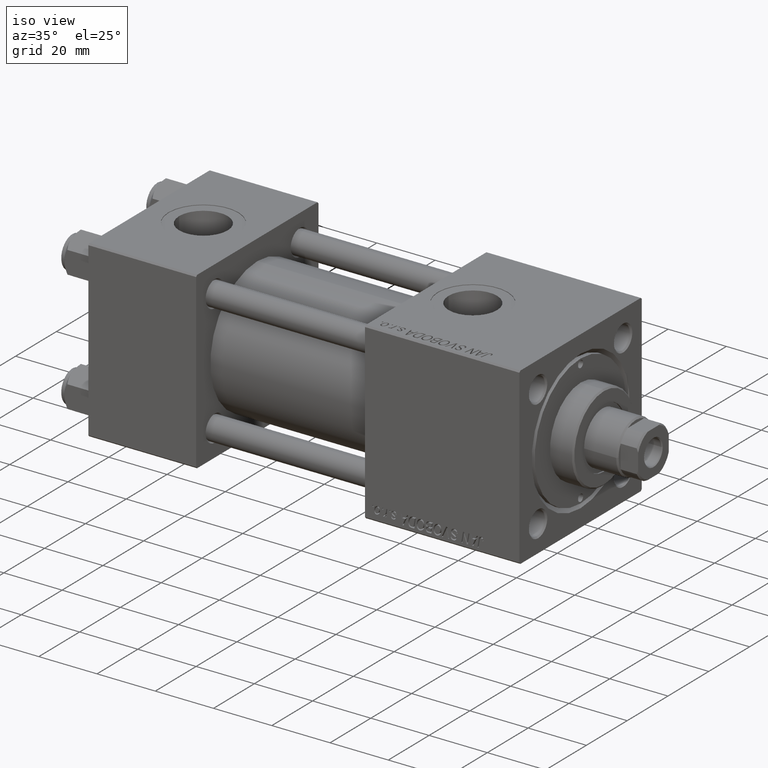
[diagram: clean part render]
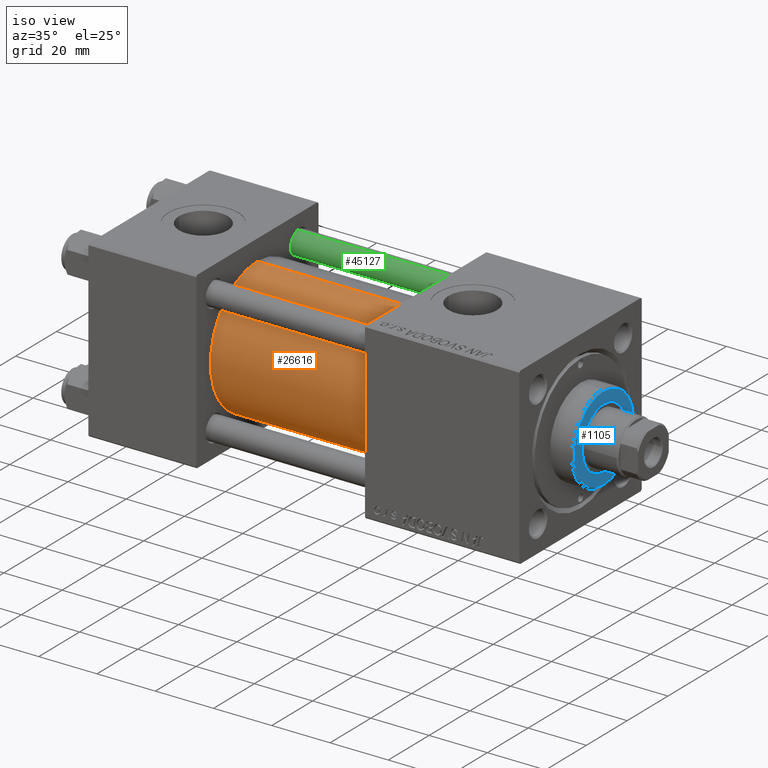
[diagram: same view with three faces highlighted in distinct colors, each labeled with its STEP entity id]
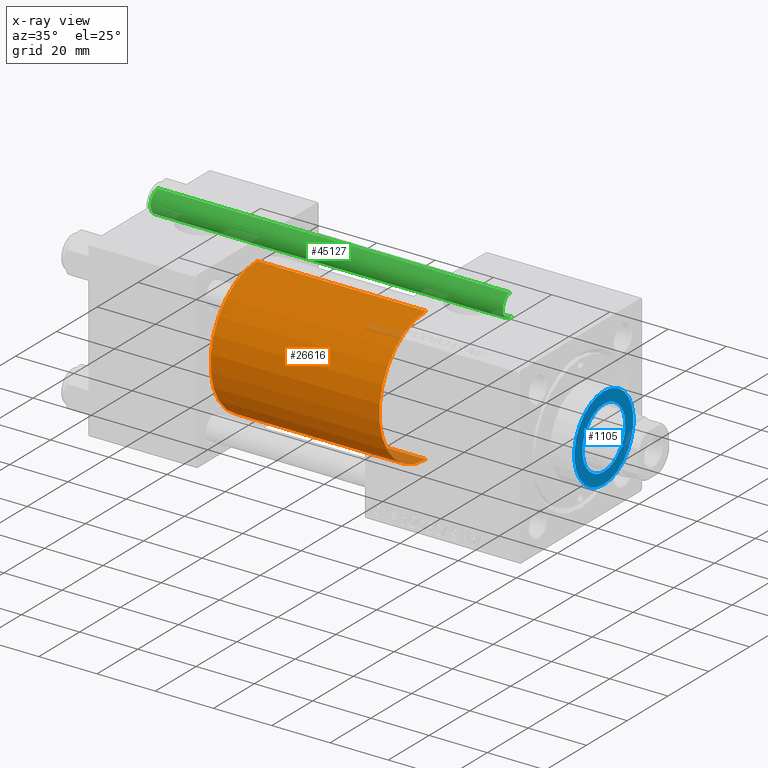
[diagram: x-ray of the same camera — body ghosted, the three highlighted faces saturated]
A machine part, iso view with three faces highlighted in distinct colors.
The next image is the same camera in x-ray (body ghosted, the three faces saturated) — at least one of them is partly hidden behind the body in this view.
Their STEP definitions:

[orange] entity #26616 — the highlighted cylindrical surface (partial cylindrical patch) has radius 23 mm, axis along (-1, -0, -0).
#1779 = CARTESIAN_POINT ( 'NONE',  ( 95.00000000000000000, -2.602085213965210642E-15, 0.000000000000000000 ) ) ;
#3115 = ORIENTED_EDGE ( 'NONE', *, *, #33470, .F. ) ;
#4968 = CARTESIAN_POINT ( 'NONE',  ( 95.00000000000000000, -2.602085213965210642E-15, 23.00000000000000000 ) ) ;
#5755 = AXIS2_PLACEMENT_3D ( 'NONE', #14068, #49344, #33694 ) ;
#6786 = CARTESIAN_POINT ( 'NONE',  ( 37.00000000000000000, -2.602085213965210642E-15, 0.000000000000000000 ) ) ;
#7624 = CIRCLE ( 'NONE', #35580, 23.00000000000000000 ) ;
#8153 = LINE ( 'NONE', #4968, #45546 ) ;
#8680 = EDGE_CURVE ( 'NONE', #51917, #17985, #22684, .T. ) ;
#9056 = ORIENTED_EDGE ( 'NONE', *, *, #8680, .T. ) ;
#9215 = DIRECTION ( 'NONE',  ( 0.000000000000000000, 0.000000000000000000, -1.000000000000000000 ) ) ;
#9316 = CYLINDRICAL_SURFACE ( 'NONE', #5755, 23.00000000000000000 ) ;
#10214 = DIRECTION ( 'NONE',  ( -1.000000000000000000, -0.000000000000000000, -0.000000000000000000 ) ) ;
#10246 = DIRECTION ( 'NONE',  ( 0.000000000000000000, 0.000000000000000000, 1.000000000000000000 ) ) ;
#14068 = CARTESIAN_POINT ( 'NONE',  ( 95.00000000000000000, -2.602085213965210642E-15, 0.000000000000000000 ) ) ;
#14193 = CARTESIAN_POINT ( 'NONE',  ( 95.00000000000000000, 2.146024240737012665E-16, -23.00000000000000000 ) ) ;
#17566 = EDGE_LOOP ( 'NONE', ( #3115, #30720, #32111, #9056 ) ) ;
#17985 = VERTEX_POINT ( 'NONE', #42307 ) ;
#22684 = CIRCLE ( 'NONE', #52304, 23.00000000000000000 ) ;
#25106 = DIRECTION ( 'NONE',  ( -1.000000000000000000, -0.000000000000000000, -0.000000000000000000 ) ) ;
#26616 = ADVANCED_FACE ( 'NONE', ( #46130 ), #9316, .T. ) ;
#27119 = VECTOR ( 'NONE', #10214, 1000.000000000000000 ) ;
#27391 = EDGE_CURVE ( 'NONE', #27420, #51917, #8153, .T. ) ;
#27420 = VERTEX_POINT ( 'NONE', #52419 ) ;
#30720 = ORIENTED_EDGE ( 'NONE', *, *, #37165, .F. ) ;
#32111 = ORIENTED_EDGE ( 'NONE', *, *, #27391, .T. ) ;
#32179 = CARTESIAN_POINT ( 'NONE',  ( 37.00000000000000000, -2.602085213965210642E-15, 23.00000000000000000 ) ) ;
#33470 = EDGE_CURVE ( 'NONE', #46253, #17985, #50512, .T. ) ;
#33694 = DIRECTION ( 'NONE',  ( 0.000000000000000000, 0.000000000000000000, 1.000000000000000000 ) ) ;
#35153 = DIRECTION ( 'NONE',  ( 1.000000000000000000, -0.000000000000000000, 0.000000000000000000 ) ) ;
#35580 = AXIS2_PLACEMENT_3D ( 'NONE', #1779, #50027, #9215 ) ;
#37165 = EDGE_CURVE ( 'NONE', #27420, #46253, #7624, .T. ) ;
#42307 = CARTESIAN_POINT ( 'NONE',  ( 37.00000000000000000, 2.146024240737012665E-16, -23.00000000000000000 ) ) ;
#45546 = VECTOR ( 'NONE', #25106, 1000.000000000000000 ) ;
#46130 = FACE_OUTER_BOUND ( 'NONE', #17566, .T. ) ;
#46253 = VERTEX_POINT ( 'NONE', #47186 ) ;
#47186 = CARTESIAN_POINT ( 'NONE',  ( 95.00000000000000000, 2.146024240737012665E-16, -23.00000000000000000 ) ) ;
#49344 = DIRECTION ( 'NONE',  ( -1.000000000000000000, -0.000000000000000000, -0.000000000000000000 ) ) ;
#50027 = DIRECTION ( 'NONE',  ( 1.000000000000000000, 0.000000000000000000, 0.000000000000000000 ) ) ;
#50512 = LINE ( 'NONE', #14193, #27119 ) ;
#51917 = VERTEX_POINT ( 'NONE', #32179 ) ;
#52304 = AXIS2_PLACEMENT_3D ( 'NONE', #6786, #35153, #10246 ) ;
#52419 = CARTESIAN_POINT ( 'NONE',  ( 95.00000000000000000, -2.602085213965210642E-15, 23.00000000000000000 ) ) ;

[blue] entity #1105 — the highlighted planar face has unit normal (1, 0, 0).
#1105 = ADVANCED_FACE ( 'NONE', ( #11718, #52272 ), #23126, .T. ) ;
#1557 = AXIS2_PLACEMENT_3D ( 'NONE', #49368, #9342, #45375 ) ;
#2580 = CIRCLE ( 'NONE', #17850, 10.50000000000000000 ) ;
#3221 = CIRCLE ( 'NONE', #1557, 14.50000000000001776 ) ;
#5995 = VERTEX_POINT ( 'NONE', #18191 ) ;
#7280 = EDGE_CURVE ( 'NONE', #17539, #43212, #24333, .T. ) ;
#7590 = VERTEX_POINT ( 'NONE', #29015 ) ;
#9069 = CARTESIAN_POINT ( 'NONE',  ( 0.000000000000000000, 0.000000000000000000, 36.69999999999999574 ) ) ;
#9342 = DIRECTION ( 'NONE',  ( 0.000000000000000000, 0.000000000000000000, 1.000000000000000000 ) ) ;
#9768 = DIRECTION ( 'NONE',  ( 1.000000000000000000, 0.000000000000000000, 0.000000000000000000 ) ) ;
#11718 = FACE_BOUND ( 'NONE', #37801, .T. ) ;
#11729 = CARTESIAN_POINT ( 'NONE',  ( 14.50000000000001776, 1.806354028742346985E-15, 36.69999999999999574 ) ) ;
#11980 = DIRECTION ( 'NONE',  ( 1.000000000000000000, 0.000000000000000000, -0.000000000000000000 ) ) ;
#12140 = DIRECTION ( 'NONE',  ( 1.000000000000000000, 0.000000000000000000, 0.000000000000000000 ) ) ;
#13225 = ORIENTED_EDGE ( 'NONE', *, *, #28236, .T. ) ;
#14778 = DIRECTION ( 'NONE',  ( 0.000000000000000000, 0.000000000000000000, 1.000000000000000000 ) ) ;
#16956 = EDGE_CURVE ( 'NONE', #5995, #7590, #28090, .T. ) ;
#17539 = VERTEX_POINT ( 'NONE', #34217 ) ;
#17806 = DIRECTION ( 'NONE',  ( 0.000000000000000000, 0.000000000000000000, 1.000000000000000000 ) ) ;
#17850 = AXIS2_PLACEMENT_3D ( 'NONE', #40751, #48711, #12140 ) ;
#18191 = CARTESIAN_POINT ( 'NONE',  ( -10.50000000000000000, 1.285879139104720831E-15, 36.69999999999999574 ) ) ;
#21272 = DIRECTION ( 'NONE',  ( 1.000000000000000000, 0.000000000000000000, 0.000000000000000000 ) ) ;
#22221 = CARTESIAN_POINT ( 'NONE',  ( 0.000000000000000000, 0.000000000000000000, 36.69999999999999574 ) ) ;
#23126 = PLANE ( 'NONE',  #24231 ) ;
#24231 = AXIS2_PLACEMENT_3D ( 'NONE', #51753, #43783, #11980 ) ;
#24333 = CIRCLE ( 'NONE', #41296, 14.50000000000001776 ) ;
#25725 = ORIENTED_EDGE ( 'NONE', *, *, #7280, .T. ) ;
#28090 = CIRCLE ( 'NONE', #37398, 10.50000000000000000 ) ;
#28236 = EDGE_CURVE ( 'NONE', #43212, #17539, #3221, .T. ) ;
#29015 = CARTESIAN_POINT ( 'NONE',  ( 10.50000000000000000, 0.000000000000000000, 36.69999999999999574 ) ) ;
#34217 = CARTESIAN_POINT ( 'NONE',  ( -14.50000000000001776, 0.000000000000000000, 36.69999999999999574 ) ) ;
#34608 = ORIENTED_EDGE ( 'NONE', *, *, #16956, .F. ) ;
#37398 = AXIS2_PLACEMENT_3D ( 'NONE', #22221, #14778, #9768 ) ;
#37801 = EDGE_LOOP ( 'NONE', ( #44393, #34608 ) ) ;
#38289 = EDGE_CURVE ( 'NONE', #7590, #5995, #2580, .T. ) ;
#39535 = EDGE_LOOP ( 'NONE', ( #25725, #13225 ) ) ;
#40751 = CARTESIAN_POINT ( 'NONE',  ( 0.000000000000000000, 0.000000000000000000, 36.69999999999999574 ) ) ;
#41296 = AXIS2_PLACEMENT_3D ( 'NONE', #9069, #17806, #21272 ) ;
#43212 = VERTEX_POINT ( 'NONE', #11729 ) ;
#43783 = DIRECTION ( 'NONE',  ( 0.000000000000000000, 0.000000000000000000, 1.000000000000000000 ) ) ;
#44393 = ORIENTED_EDGE ( 'NONE', *, *, #38289, .F. ) ;
#45375 = DIRECTION ( 'NONE',  ( 1.000000000000000000, 0.000000000000000000, 0.000000000000000000 ) ) ;
#48711 = DIRECTION ( 'NONE',  ( 0.000000000000000000, 0.000000000000000000, 1.000000000000000000 ) ) ;
#49368 = CARTESIAN_POINT ( 'NONE',  ( 0.000000000000000000, 0.000000000000000000, 36.69999999999999574 ) ) ;
#51753 = CARTESIAN_POINT ( 'NONE',  ( 0.000000000000000000, 0.000000000000000000, 36.69999999999999574 ) ) ;
#52272 = FACE_OUTER_BOUND ( 'NONE', #39535, .T. ) ;

[green] entity #45127 — the highlighted cylindrical surface (edge-blend (fillet) strip) has radius 4 mm, axis along (-1, 0, 0).
#349 = VERTEX_POINT ( 'NONE', #46321 ) ;
#2845 = EDGE_CURVE ( 'NONE', #34724, #4156, #37871, .T. ) ;
#2896 = FACE_OUTER_BOUND ( 'NONE', #30744, .T. ) ;
#3172 = DIRECTION ( 'NONE',  ( -0.000000000000000000, -0.000000000000000000, 1.000000000000000000 ) ) ;
#3418 = CYLINDRICAL_SURFACE ( 'NONE', #24872, 4.000000000000000000 ) ;
#4156 = VERTEX_POINT ( 'NONE', #38109 ) ;
#5441 = CARTESIAN_POINT ( 'NONE',  ( -4.000000000000000000, 0.000000000000000000, 0.5000000000000559552 ) ) ;
#7314 = CARTESIAN_POINT ( 'NONE',  ( 0.000000000000000000, 0.000000000000000000, 121.5000000000000426 ) ) ;
#7405 = DIRECTION ( 'NONE',  ( -1.000000000000000000, 0.000000000000000000, 0.000000000000000000 ) ) ;
#7799 = VECTOR ( 'NONE', #31612, 1000.000000000000000 ) ;
#13599 = ORIENTED_EDGE ( 'NONE', *, *, #47274, .F. ) ;
#17292 = LINE ( 'NONE', #41668, #37669 ) ;
#18984 = DIRECTION ( 'NONE',  ( 1.000000000000000000, 0.000000000000000000, 0.000000000000000000 ) ) ;
#19076 = CARTESIAN_POINT ( 'NONE',  ( 0.000000000000000000, 0.000000000000000000, 122.0000000000000000 ) ) ;
#19598 = DIRECTION ( 'NONE',  ( -0.000000000000000000, -0.000000000000000000, -1.000000000000000000 ) ) ;
#20644 = VERTEX_POINT ( 'NONE', #5441 ) ;
#20851 = EDGE_CURVE ( 'NONE', #4156, #20644, #31877, .T. ) ;
#24872 = AXIS2_PLACEMENT_3D ( 'NONE', #19076, #19598, #7405 ) ;
#25494 = CARTESIAN_POINT ( 'NONE',  ( 4.000000000000000000, 4.898587196589411843E-16, 121.5000000000000426 ) ) ;
#26526 = CARTESIAN_POINT ( 'NONE',  ( 0.000000000000000000, 0.000000000000000000, 0.5000000000000559552 ) ) ;
#30088 = ORIENTED_EDGE ( 'NONE', *, *, #2845, .T. ) ;
#30744 = EDGE_LOOP ( 'NONE', ( #13599, #30088, #47679, #35005 ) ) ;
#31612 = DIRECTION ( 'NONE',  ( -0.000000000000000000, -0.000000000000000000, -1.000000000000000000 ) ) ;
#31877 = LINE ( 'NONE', #36648, #7799 ) ;
#33638 = AXIS2_PLACEMENT_3D ( 'NONE', #7314, #51330, #18984 ) ;
#34724 = VERTEX_POINT ( 'NONE', #25494 ) ;
#35000 = DIRECTION ( 'NONE',  ( 1.000000000000000000, 0.000000000000000000, 0.000000000000000000 ) ) ;
#35005 = ORIENTED_EDGE ( 'NONE', *, *, #48712, .T. ) ;
#36648 = CARTESIAN_POINT ( 'NONE',  ( -4.000000000000000000, 0.000000000000000000, 122.0000000000000000 ) ) ;
#37669 = VECTOR ( 'NONE', #37687, 1000.000000000000000 ) ;
#37687 = DIRECTION ( 'NONE',  ( -0.000000000000000000, -0.000000000000000000, -1.000000000000000000 ) ) ;
#37706 = CIRCLE ( 'NONE', #38529, 4.000000000000000000 ) ;
#37871 = CIRCLE ( 'NONE', #33638, 4.000000000000000000 ) ;
#38109 = CARTESIAN_POINT ( 'NONE',  ( -4.000000000000000000, 0.000000000000000000, 121.5000000000000426 ) ) ;
#38529 = AXIS2_PLACEMENT_3D ( 'NONE', #26526, #3172, #35000 ) ;
#41668 = CARTESIAN_POINT ( 'NONE',  ( 4.000000000000000000, 4.898587196589411843E-16, 122.0000000000000000 ) ) ;
#45127 = ADVANCED_FACE ( 'NONE', ( #2896 ), #3418, .T. ) ;
#46321 = CARTESIAN_POINT ( 'NONE',  ( 4.000000000000000000, 4.898587196589411843E-16, 0.5000000000000559552 ) ) ;
#47274 = EDGE_CURVE ( 'NONE', #34724, #349, #17292, .T. ) ;
#47679 = ORIENTED_EDGE ( 'NONE', *, *, #20851, .T. ) ;
#48712 = EDGE_CURVE ( 'NONE', #20644, #349, #37706, .T. ) ;
#51330 = DIRECTION ( 'NONE',  ( 0.000000000000000000, 0.000000000000000000, -1.000000000000000000 ) ) ;